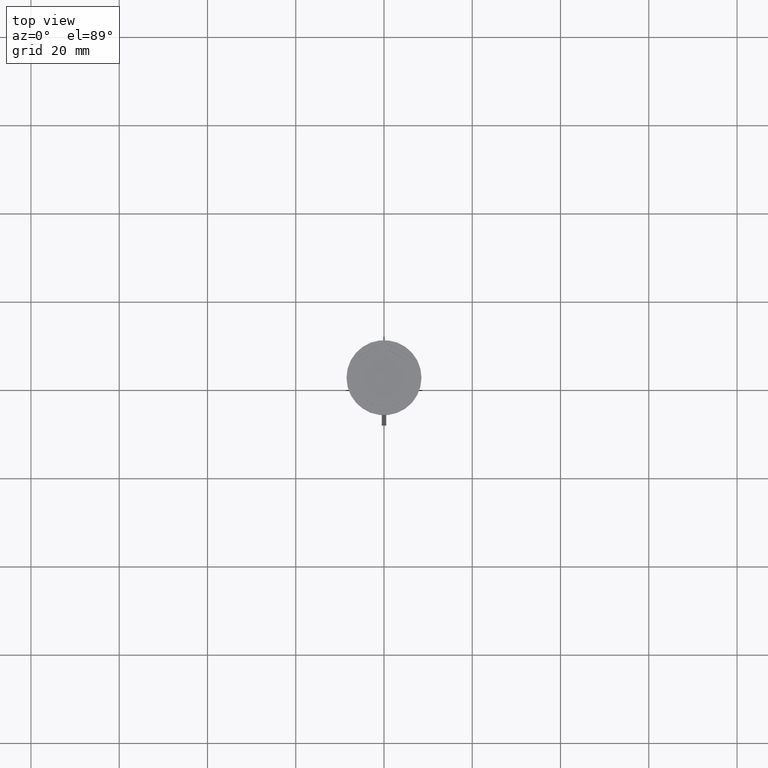
[diagram: clean part render]
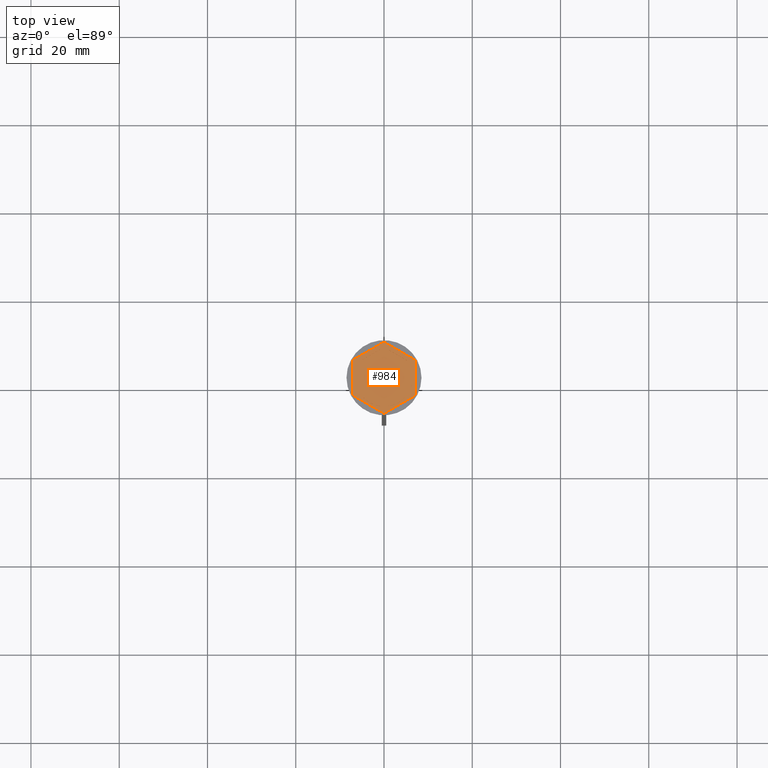
[diagram: same view with one face highlighted and labeled with its STEP entity id]
A machine part, top view. The second image highlights one B-rep face of the part: STEP entity #984.
In plain terms, the highlighted planar face has unit normal (0, 0, 1).
Its self-contained STEP definition (entity closure, byte-faithful):
#1 = DIRECTION ( 'NONE',  ( 1.000000000000000000, 0.000000000000000000, 0.000000000000000000 ) ) ;
#9 = EDGE_LOOP ( 'NONE', ( #866, #2194 ) ) ;
#14 = VERTEX_POINT ( 'NONE', #2312 ) ;
#23 = DIRECTION ( 'NONE',  ( 0.8660254037844384856, 0.5000000000000001110, 0.000000000000000000 ) ) ;
#43 = LINE ( 'NONE', #2183, #2363 ) ;
#61 = CARTESIAN_POINT ( 'NONE',  ( -6.500000000000000888, 0.000000000000000000, -1.000000000000000000 ) ) ;
#89 = VERTEX_POINT ( 'NONE', #1135 ) ;
#92 = DIRECTION ( 'NONE',  ( 0.8660254037844385966, 0.5000000000000001110, -0.000000000000000000 ) ) ;
#101 = VECTOR ( 'NONE', #1882, 1000.000000000000000 ) ;
#109 = VERTEX_POINT ( 'NONE', #739 ) ;
#113 = VECTOR ( 'NONE', #945, 999.9999999999998863 ) ;
#123 = CARTESIAN_POINT ( 'NONE',  ( 0.000000000000000000, 6.928203230275507885, -1.000000000000000888 ) ) ;
#136 = ORIENTED_EDGE ( 'NONE', *, *, #1795, .F. ) ;
#158 = CARTESIAN_POINT ( 'NONE',  ( 6.000000000000000888, 3.464101615137753942, -1.000000000000000888 ) ) ;
#162 = FACE_BOUND ( 'NONE', #1074, .T. ) ;
#166 = ORIENTED_EDGE ( 'NONE', *, *, #1410, .T. ) ;
#170 = LINE ( 'NONE', #1365, #560 ) ;
#271 = VECTOR ( 'NONE', #1689, 1000.000000000000114 ) ;
#300 = CARTESIAN_POINT ( 'NONE',  ( 5.999999999999999112, -3.464101615137755719, -1.000000000000000888 ) ) ;
#304 = EDGE_CURVE ( 'NONE', #1905, #89, #2167, .T. ) ;
#309 = CIRCLE ( 'NONE', #681, 6.500000000000000888 ) ;
#333 = LINE ( 'NONE', #342, #2171 ) ;
#342 = CARTESIAN_POINT ( 'NONE',  ( 7.000000000000000888, 4.041451884327382338, -1.000000000000000000 ) ) ;
#348 = CARTESIAN_POINT ( 'NONE',  ( 0.000000000000000000, 0.000000000000000000, -1.000000000000000000 ) ) ;
#415 = CARTESIAN_POINT ( 'NONE',  ( 0.8349364905389008440, -6.446152422706633800, -1.000000000000000888 ) ) ;
#436 = CARTESIAN_POINT ( 'NONE',  ( 5.999999999999999112, -2.500000000000003109, -1.000000000000000888 ) ) ;
#441 = DIRECTION ( 'NONE',  ( 1.000000000000000000, 0.000000000000000000, 0.000000000000000000 ) ) ;
#475 = CARTESIAN_POINT ( 'NONE',  ( 6.000000000000000888, 2.500000000000000444, -1.000000000000000888 ) ) ;
#476 = CARTESIAN_POINT ( 'NONE',  ( 0.000000000000000000, 0.000000000000000000, -1.000000000000000000 ) ) ;
#481 = CIRCLE ( 'NONE', #565, 6.500000000000000888 ) ;
#493 = CARTESIAN_POINT ( 'NONE',  ( 5.165063509461097269, -3.946152422706631580, -1.000000000000000888 ) ) ;
#497 = ORIENTED_EDGE ( 'NONE', *, *, #1620, .T. ) ;
#502 = DIRECTION ( 'NONE',  ( -0.8660254037844385966, 0.5000000000000001110, 0.000000000000000000 ) ) ;
#514 = CIRCLE ( 'NONE', #2090, 6.500000000000000888 ) ;
#560 = VECTOR ( 'NONE', #1133, 1000.000000000000000 ) ;
#561 = VECTOR ( 'NONE', #92, 1000.000000000000000 ) ;
#565 = AXIS2_PLACEMENT_3D ( 'NONE', #1415, #1809, #1779 ) ;
#601 = ORIENTED_EDGE ( 'NONE', *, *, #614, .F. ) ;
#604 = CIRCLE ( 'NONE', #1814, 6.500000000000000888 ) ;
#614 = EDGE_CURVE ( 'NONE', #2196, #900, #2063, .T. ) ;
#625 = DIRECTION ( 'NONE',  ( 1.073081856240827703E-16, 1.000000000000000000, 0.000000000000000000 ) ) ;
#630 = EDGE_CURVE ( 'NONE', #905, #873, #309, .T. ) ;
#633 = VERTEX_POINT ( 'NONE', #475 ) ;
#640 = ORIENTED_EDGE ( 'NONE', *, *, #630, .F. ) ;
#655 = ORIENTED_EDGE ( 'NONE', *, *, #1028, .T. ) ;
#681 = AXIS2_PLACEMENT_3D ( 'NONE', #1649, #2213, #1063 ) ;
#694 = LINE ( 'NONE', #704, #271 ) ;
#704 = CARTESIAN_POINT ( 'NONE',  ( -7.000000000000000888, -4.041451884327381450, -1.000000000000000000 ) ) ;
#729 = AXIS2_PLACEMENT_3D ( 'NONE', #476, #2201, #441 ) ;
#737 = EDGE_CURVE ( 'NONE', #1604, #1091, #2316, .T. ) ;
#739 = CARTESIAN_POINT ( 'NONE',  ( -0.8349364905388981795, 6.446152422706633800, -1.000000000000000888 ) ) ;
#751 = EDGE_CURVE ( 'NONE', #900, #1262, #764, .T. ) ;
#764 = CIRCLE ( 'NONE', #2287, 6.500000000000000888 ) ;
#768 = VECTOR ( 'NONE', #502, 1000.000000000000000 ) ;
#783 = ORIENTED_EDGE ( 'NONE', *, *, #1303, .F. ) ;
#793 = CARTESIAN_POINT ( 'NONE',  ( 2.174016704710901386E-15, -8.082903768654762899, -1.000000000000000000 ) ) ;
#848 = VERTEX_POINT ( 'NONE', #436 ) ;
#854 = EDGE_CURVE ( 'NONE', #848, #633, #604, .T. ) ;
#855 = DIRECTION ( 'NONE',  ( 0.000000000000000000, 0.000000000000000000, 1.000000000000000000 ) ) ;
#857 = EDGE_CURVE ( 'NONE', #1981, #1322, #43, .T. ) ;
#860 = EDGE_LOOP ( 'NONE', ( #655, #1217, #1848, #166, #497, #2347 ) ) ;
#866 = ORIENTED_EDGE ( 'NONE', *, *, #1714, .F. ) ;
#873 = VERTEX_POINT ( 'NONE', #493 ) ;
#897 = CARTESIAN_POINT ( 'NONE',  ( -0.8349364905389056180, -6.446152422706632024, -1.000000000000000888 ) ) ;
#900 = VERTEX_POINT ( 'NONE', #1378 ) ;
#905 = VERTEX_POINT ( 'NONE', #415 ) ;
#907 = PLANE ( 'NONE',  #1849 ) ;
#923 = LINE ( 'NONE', #123, #561 ) ;
#945 = DIRECTION ( 'NONE',  ( 0.8660254037844388186, -0.4999999999999998335, 0.000000000000000000 ) ) ;
#973 = ORIENTED_EDGE ( 'NONE', *, *, #304, .F. ) ;
#984 = ADVANCED_FACE ( 'NONE', ( #2472, #1521, #1476, #2288, #2263, #162, #1125 ), #907, .T. ) ;
#1001 = VECTOR ( 'NONE', #1783, 1000.000000000000114 ) ;
#1014 = EDGE_CURVE ( 'NONE', #633, #848, #2030, .T. ) ;
#1028 = EDGE_CURVE ( 'NONE', #1322, #1674, #333, .T. ) ;
#1032 = VERTEX_POINT ( 'NONE', #2272 ) ;
#1040 = VERTEX_POINT ( 'NONE', #897 ) ;
#1049 = EDGE_CURVE ( 'NONE', #1040, #1032, #2242, .T. ) ;
#1063 = DIRECTION ( 'NONE',  ( 1.000000000000000000, 0.000000000000000000, 0.000000000000000000 ) ) ;
#1074 = EDGE_LOOP ( 'NONE', ( #1868, #136 ) ) ;
#1091 = VERTEX_POINT ( 'NONE', #1539 ) ;
#1103 = CARTESIAN_POINT ( 'NONE',  ( -6.000000000000000000, 3.464101615137752166, -1.000000000000000888 ) ) ;
#1114 = DIRECTION ( 'NONE',  ( 0.000000000000000000, 0.000000000000000000, 1.000000000000000000 ) ) ;
#1125 = FACE_OUTER_BOUND ( 'NONE', #860, .T. ) ;
#1133 = DIRECTION ( 'NONE',  ( -0.8660254037844387076, -0.4999999999999998890, 0.000000000000000000 ) ) ;
#1135 = CARTESIAN_POINT ( 'NONE',  ( 0.8349364905389003999, 6.446152422706633800, -1.000000000000000888 ) ) ;
#1140 = EDGE_LOOP ( 'NONE', ( #2150, #1244 ) ) ;
#1156 = LINE ( 'NONE', #158, #113 ) ;
#1186 = CARTESIAN_POINT ( 'NONE',  ( -7.000000000000000888, 4.041451884327381450, -1.000000000000000000 ) ) ;
#1217 = ORIENTED_EDGE ( 'NONE', *, *, #1695, .T. ) ;
#1244 = ORIENTED_EDGE ( 'NONE', *, *, #1014, .F. ) ;
#1262 = VERTEX_POINT ( 'NONE', #61 ) ;
#1301 = ORIENTED_EDGE ( 'NONE', *, *, #751, .F. ) ;
#1303 = EDGE_CURVE ( 'NONE', #1262, #2196, #514, .T. ) ;
#1322 = VERTEX_POINT ( 'NONE', #2397 ) ;
#1347 = CARTESIAN_POINT ( 'NONE',  ( 0.000000000000000000, 0.000000000000000000, -1.000000000000000000 ) ) ;
#1365 = CARTESIAN_POINT ( 'NONE',  ( -1.301042606982605321E-15, -6.928203230275509661, -1.000000000000000888 ) ) ;
#1378 = CARTESIAN_POINT ( 'NONE',  ( -6.000000000000000000, 2.500000000000001776, -1.000000000000000888 ) ) ;
#1410 = EDGE_CURVE ( 'NONE', #1091, #1705, #694, .T. ) ;
#1415 = CARTESIAN_POINT ( 'NONE',  ( 0.000000000000000000, 0.000000000000000000, -1.000000000000000000 ) ) ;
#1432 = LINE ( 'NONE', #1797, #1001 ) ;
#1456 = CIRCLE ( 'NONE', #729, 6.500000000000000888 ) ;
#1476 = FACE_BOUND ( 'NONE', #2159, .T. ) ;
#1501 = DIRECTION ( 'NONE',  ( 0.000000000000000000, 0.000000000000000000, 1.000000000000000000 ) ) ;
#1521 = FACE_BOUND ( 'NONE', #1140, .T. ) ;
#1539 = CARTESIAN_POINT ( 'NONE',  ( -7.000000000000000888, -4.041451884327381450, -1.000000000000000000 ) ) ;
#1547 = DIRECTION ( 'NONE',  ( 0.000000000000000000, -1.000000000000000000, 0.000000000000000000 ) ) ;
#1604 = VERTEX_POINT ( 'NONE', #1186 ) ;
#1620 = EDGE_CURVE ( 'NONE', #1705, #1981, #1768, .T. ) ;
#1630 = DIRECTION ( 'NONE',  ( 1.000000000000000000, 0.000000000000000000, 0.000000000000000000 ) ) ;
#1649 = CARTESIAN_POINT ( 'NONE',  ( 0.000000000000000000, 0.000000000000000000, -1.000000000000000000 ) ) ;
#1651 = AXIS2_PLACEMENT_3D ( 'NONE', #1347, #1757, #1 ) ;
#1674 = VERTEX_POINT ( 'NONE', #2354 ) ;
#1682 = DIRECTION ( 'NONE',  ( -2.503857664561932376E-16, -1.000000000000000000, 0.000000000000000000 ) ) ;
#1689 = DIRECTION ( 'NONE',  ( 0.8660254037844387076, -0.4999999999999997224, 0.000000000000000000 ) ) ;
#1695 = EDGE_CURVE ( 'NONE', #1674, #1604, #1432, .T. ) ;
#1705 = VERTEX_POINT ( 'NONE', #1990 ) ;
#1714 = EDGE_CURVE ( 'NONE', #1032, #1040, #1456, .T. ) ;
#1740 = VECTOR ( 'NONE', #1682, 1000.000000000000000 ) ;
#1742 = CARTESIAN_POINT ( 'NONE',  ( 7.000000000000000000, -4.041451884327381450, -1.000000000000000000 ) ) ;
#1757 = DIRECTION ( 'NONE',  ( 0.000000000000000000, 0.000000000000000000, 1.000000000000000000 ) ) ;
#1768 = LINE ( 'NONE', #793, #1822 ) ;
#1779 = DIRECTION ( 'NONE',  ( 1.000000000000000000, 0.000000000000000000, 0.000000000000000000 ) ) ;
#1783 = DIRECTION ( 'NONE',  ( -0.8660254037844385966, -0.4999999999999999445, 0.000000000000000000 ) ) ;
#1795 = EDGE_CURVE ( 'NONE', #14, #109, #923, .T. ) ;
#1797 = CARTESIAN_POINT ( 'NONE',  ( 0.000000000000000000, 8.082903768654762899, -1.000000000000000000 ) ) ;
#1809 = DIRECTION ( 'NONE',  ( 0.000000000000000000, 0.000000000000000000, 1.000000000000000000 ) ) ;
#1814 = AXIS2_PLACEMENT_3D ( 'NONE', #2350, #2340, #2364 ) ;
#1822 = VECTOR ( 'NONE', #23, 1000.000000000000227 ) ;
#1828 = CARTESIAN_POINT ( 'NONE',  ( 0.000000000000000000, 0.000000000000000000, -1.000000000000000000 ) ) ;
#1834 = CARTESIAN_POINT ( 'NONE',  ( 5.165063509461097269, 3.946152422706633356, -1.000000000000000888 ) ) ;
#1848 = ORIENTED_EDGE ( 'NONE', *, *, #737, .T. ) ;
#1849 = AXIS2_PLACEMENT_3D ( 'NONE', #2426, #1501, #2252 ) ;
#1868 = ORIENTED_EDGE ( 'NONE', *, *, #2126, .F. ) ;
#1882 = DIRECTION ( 'NONE',  ( 0.000000000000000000, 1.000000000000000000, 0.000000000000000000 ) ) ;
#1905 = VERTEX_POINT ( 'NONE', #1834 ) ;
#1921 = EDGE_CURVE ( 'NONE', #873, #905, #170, .T. ) ;
#1941 = CARTESIAN_POINT ( 'NONE',  ( -7.000000000000000888, 4.041451884327381450, -1.000000000000000000 ) ) ;
#1947 = EDGE_CURVE ( 'NONE', #89, #1905, #1156, .T. ) ;
#1981 = VERTEX_POINT ( 'NONE', #1742 ) ;
#1990 = CARTESIAN_POINT ( 'NONE',  ( 2.174016704710901386E-15, -8.082903768654762899, -1.000000000000000000 ) ) ;
#2030 = LINE ( 'NONE', #300, #1740 ) ;
#2033 = EDGE_LOOP ( 'NONE', ( #1301, #601, #783 ) ) ;
#2045 = CARTESIAN_POINT ( 'NONE',  ( -6.000000000000000000, -3.464101615137754830, -1.000000000000000888 ) ) ;
#2063 = LINE ( 'NONE', #1103, #101 ) ;
#2090 = AXIS2_PLACEMENT_3D ( 'NONE', #1828, #855, #1630 ) ;
#2126 = EDGE_CURVE ( 'NONE', #109, #14, #481, .T. ) ;
#2131 = VECTOR ( 'NONE', #1547, 1000.000000000000000 ) ;
#2150 = ORIENTED_EDGE ( 'NONE', *, *, #854, .F. ) ;
#2155 = ORIENTED_EDGE ( 'NONE', *, *, #1947, .F. ) ;
#2159 = EDGE_LOOP ( 'NONE', ( #640, #2390 ) ) ;
#2167 = CIRCLE ( 'NONE', #1651, 6.500000000000000888 ) ;
#2171 = VECTOR ( 'NONE', #2462, 1000.000000000000114 ) ;
#2183 = CARTESIAN_POINT ( 'NONE',  ( 7.000000000000000000, -4.041451884327381450, -1.000000000000000000 ) ) ;
#2194 = ORIENTED_EDGE ( 'NONE', *, *, #1049, .F. ) ;
#2196 = VERTEX_POINT ( 'NONE', #2257 ) ;
#2201 = DIRECTION ( 'NONE',  ( 0.000000000000000000, 0.000000000000000000, 1.000000000000000000 ) ) ;
#2213 = DIRECTION ( 'NONE',  ( 0.000000000000000000, 0.000000000000000000, 1.000000000000000000 ) ) ;
#2242 = LINE ( 'NONE', #2045, #768 ) ;
#2252 = DIRECTION ( 'NONE',  ( 1.000000000000000000, 0.000000000000000000, -0.000000000000000000 ) ) ;
#2257 = CARTESIAN_POINT ( 'NONE',  ( -6.000000000000000000, -2.500000000000001776, -1.000000000000000888 ) ) ;
#2263 = FACE_BOUND ( 'NONE', #2033, .T. ) ;
#2272 = CARTESIAN_POINT ( 'NONE',  ( -5.165063509461097269, -3.946152422706633356, -1.000000000000000888 ) ) ;
#2287 = AXIS2_PLACEMENT_3D ( 'NONE', #348, #1114, #2308 ) ;
#2288 = FACE_BOUND ( 'NONE', #9, .T. ) ;
#2308 = DIRECTION ( 'NONE',  ( 1.000000000000000000, 0.000000000000000000, 0.000000000000000000 ) ) ;
#2312 = CARTESIAN_POINT ( 'NONE',  ( -5.165063509461101710, 3.946152422706626250, -1.000000000000000888 ) ) ;
#2316 = LINE ( 'NONE', #1941, #2131 ) ;
#2326 = EDGE_LOOP ( 'NONE', ( #973, #2155 ) ) ;
#2340 = DIRECTION ( 'NONE',  ( 0.000000000000000000, 0.000000000000000000, 1.000000000000000000 ) ) ;
#2347 = ORIENTED_EDGE ( 'NONE', *, *, #857, .T. ) ;
#2350 = CARTESIAN_POINT ( 'NONE',  ( 0.000000000000000000, 0.000000000000000000, -1.000000000000000000 ) ) ;
#2354 = CARTESIAN_POINT ( 'NONE',  ( 0.000000000000000000, 8.082903768654762899, -1.000000000000000000 ) ) ;
#2363 = VECTOR ( 'NONE', #625, 1000.000000000000000 ) ;
#2364 = DIRECTION ( 'NONE',  ( 1.000000000000000000, 0.000000000000000000, 0.000000000000000000 ) ) ;
#2390 = ORIENTED_EDGE ( 'NONE', *, *, #1921, .F. ) ;
#2397 = CARTESIAN_POINT ( 'NONE',  ( 7.000000000000000888, 4.041451884327382338, -1.000000000000000000 ) ) ;
#2426 = CARTESIAN_POINT ( 'NONE',  ( 0.000000000000000000, 0.000000000000000000, -1.000000000000000000 ) ) ;
#2462 = DIRECTION ( 'NONE',  ( -0.8660254037844387076, 0.4999999999999998890, 0.000000000000000000 ) ) ;
#2472 = FACE_BOUND ( 'NONE', #2326, .T. ) ;